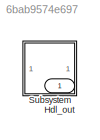
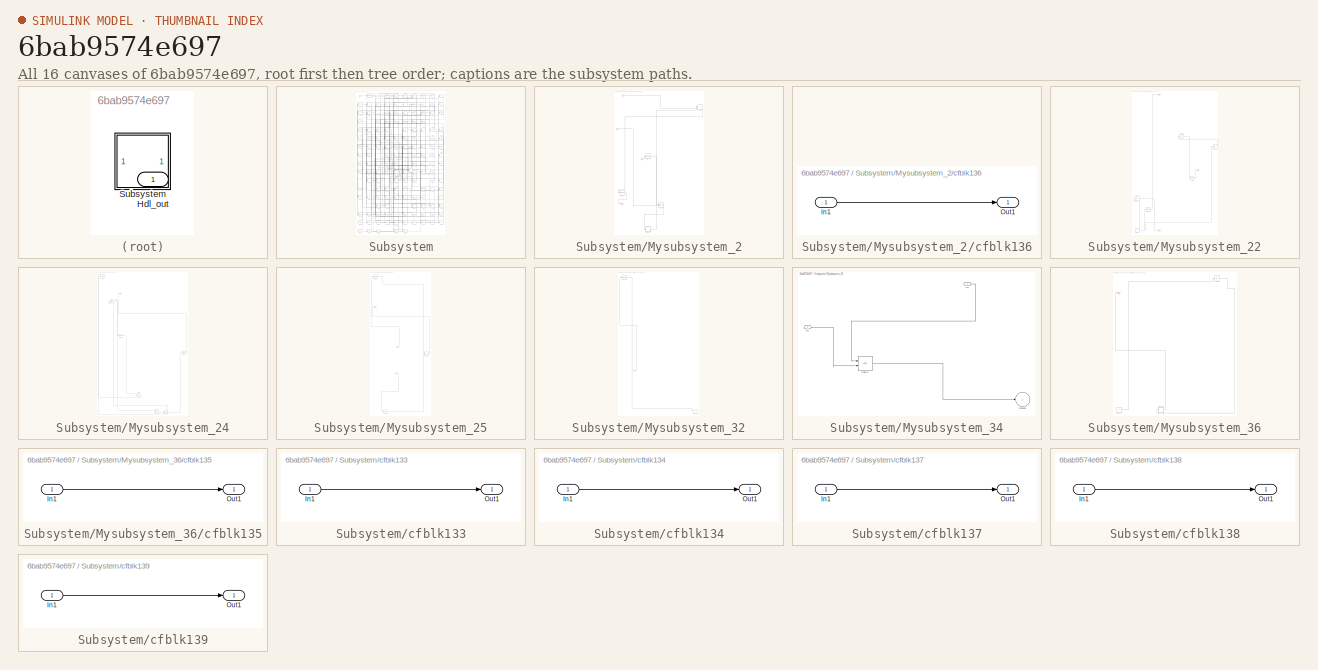
[diagram: thumbnail index - all 16 canvases of the model, root first then tree order]
MODEL slx_6bab9574e697
KIND model
CONFIG AbsTol = auto
CONFIG EnableMultiTasking = off
CONFIG FixedStep = auto
CONFIG MaxStep = auto
CONFIG MinStep = auto
CONFIG RelTol = 1e-3
CONFIG SampleTimeConstraint = Unconstrained
CONFIG SolverName = VariableStepAuto
CONFIG StartTime = 0.0
CONFIG StopTime = 10.0
BLOCK [Outport] Hdl_out
  OutDataTypeStr = uint8
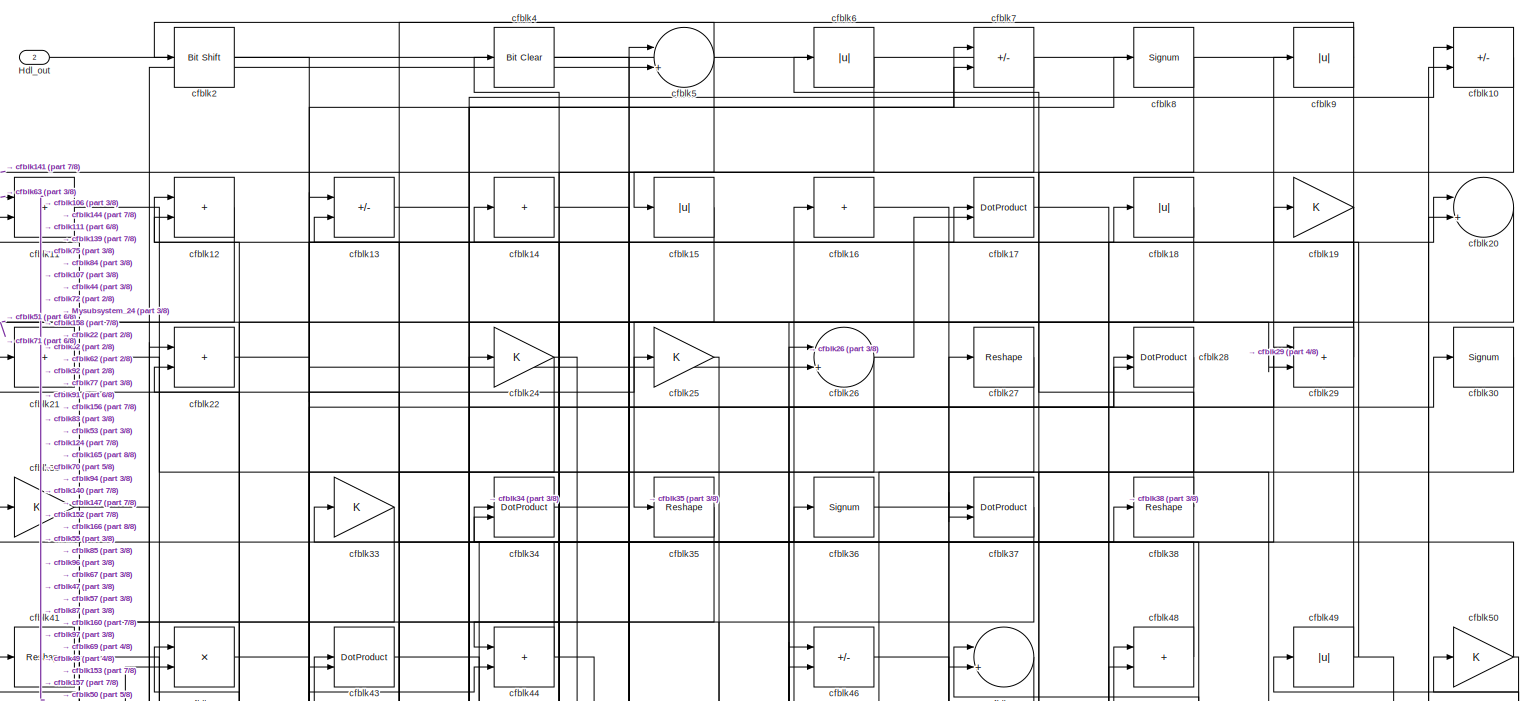
[diagram: Subsystem - part 1/8, full width, top band]
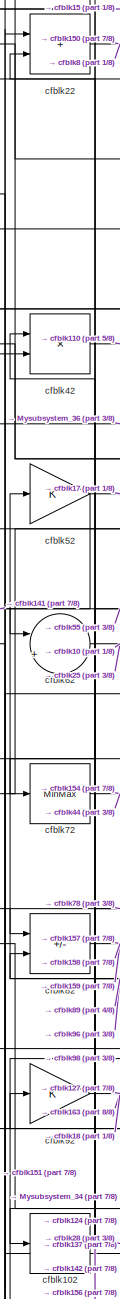
[diagram: Subsystem - part 2/8, middle left region]
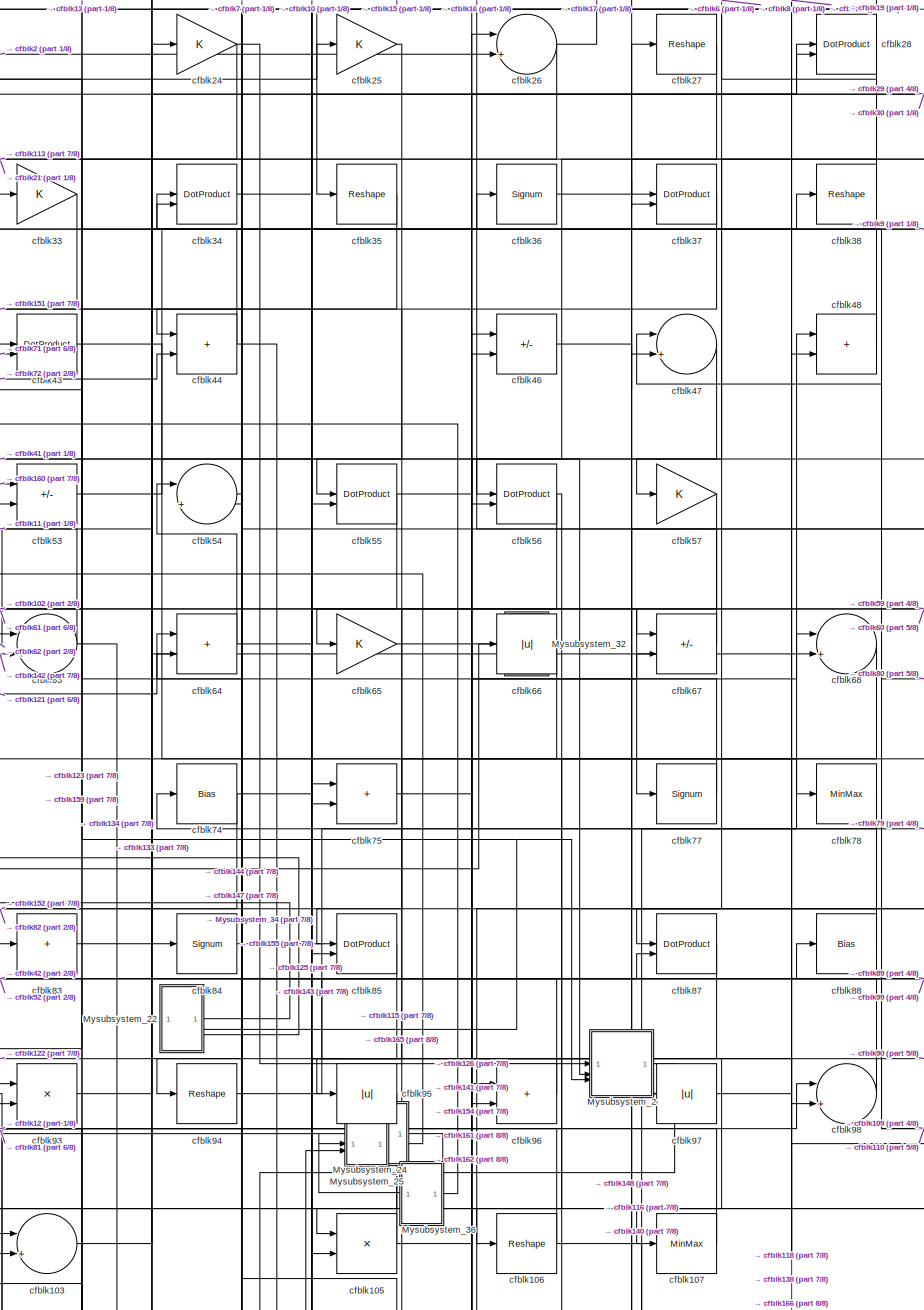
[diagram: Subsystem - part 3/8, central region]
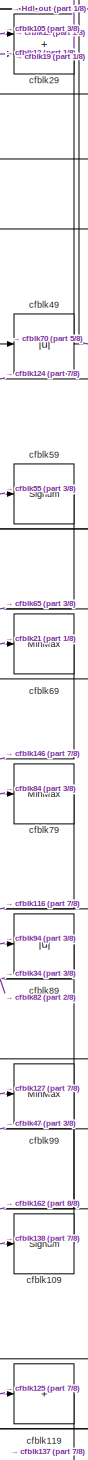
[diagram: Subsystem - part 4/8, middle right region]
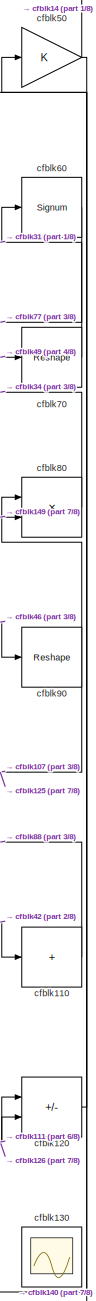
[diagram: Subsystem - part 5/8, middle right region]
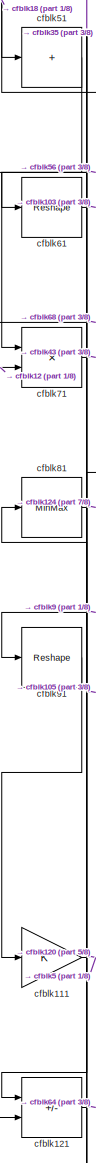
[diagram: Subsystem - part 6/8, middle left region]
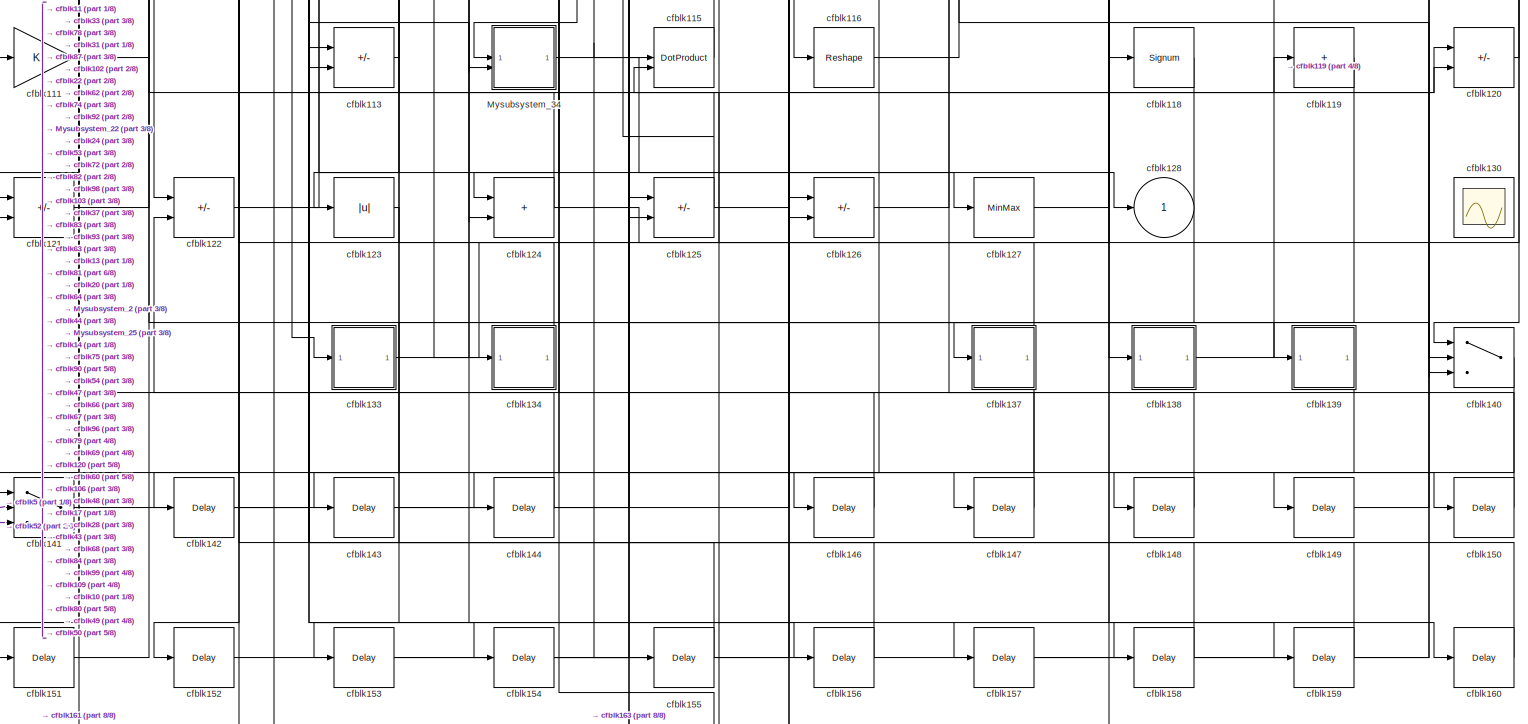
[diagram: Subsystem - part 7/8, full width, bottom band]
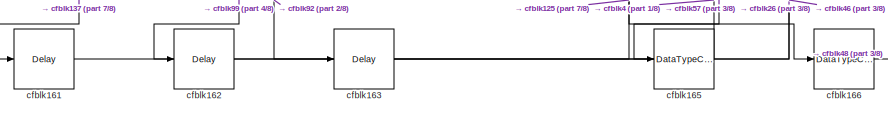
[diagram: Subsystem - part 8/8, bottom left region]
BLOCK [SubSystem] Subsystem
BLOCK [Outport] Subsystem/Hdl_out
  OutDataTypeStr = uint8
  Port = 2
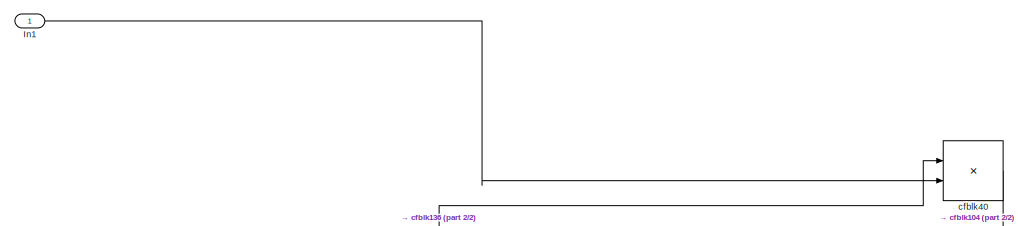
[diagram: Subsystem/Mysubsystem_2 - part 1/2, full width, top band]
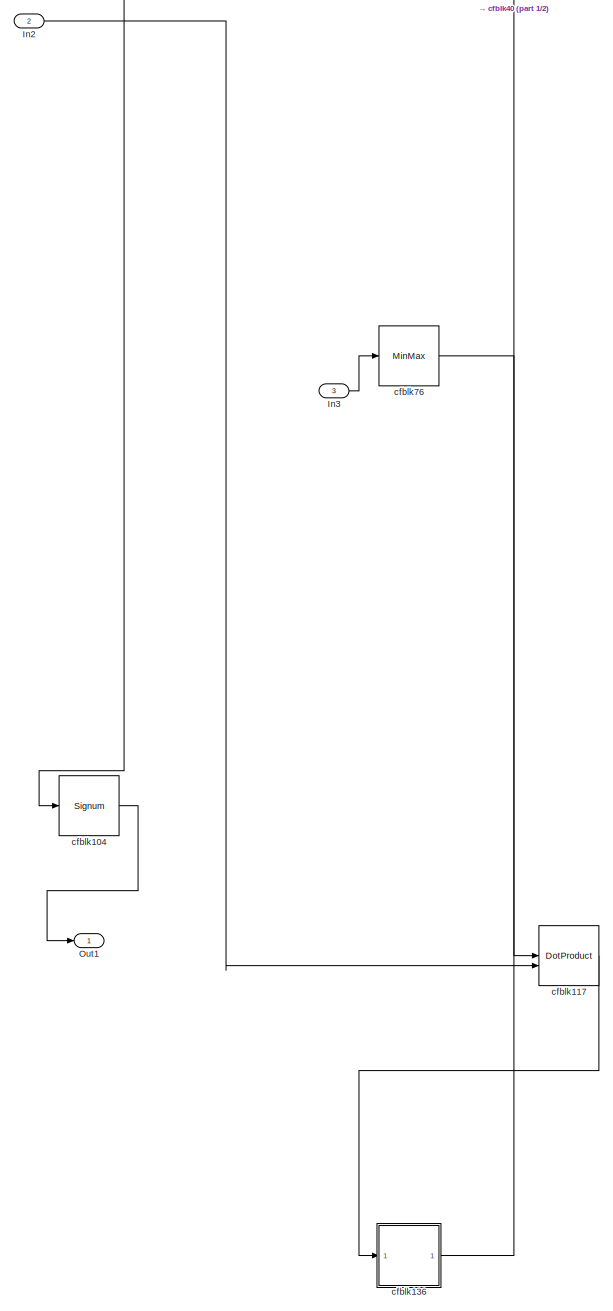
[diagram: Subsystem/Mysubsystem_2 - part 2/2, left side, full height]
BLOCK [SubSystem] Subsystem/Mysubsystem_2
  RTWFcnName = Mysubsystem_2
  RTWFcnNameOpts = User specified
  RTWFileNameOpts = Use function name
  RTWSystemCode = Reusable function
  TreatAsAtomicUnit = on
BLOCK [Inport] Subsystem/Mysubsystem_2/In1
BLOCK [Inport] Subsystem/Mysubsystem_2/In2
  Port = 2
BLOCK [Inport] Subsystem/Mysubsystem_2/In3
  Port = 3
BLOCK [Outport] Subsystem/Mysubsystem_2/Out1
BLOCK [Signum] Subsystem/Mysubsystem_2/cfblk104
BLOCK [DotProduct] Subsystem/Mysubsystem_2/cfblk117
  OutDataTypeStr = Inherit: Inherit via internal rule
BLOCK [SubSystem] Subsystem/Mysubsystem_2/cfblk136
  LibrarySourceBlock = hdlsllib/Ports &\nSubsystems/Subsystem
BLOCK [Inport] Subsystem/Mysubsystem_2/cfblk136/In1
BLOCK [Outport] Subsystem/Mysubsystem_2/cfblk136/Out1
BLOCK [Product] Subsystem/Mysubsystem_2/cfblk40
  Inputs = */
  RndMeth = Zero
  SaturateOnIntegerOverflow = on
BLOCK [MinMax] Subsystem/Mysubsystem_2/cfblk76
BLOCK [SubSystem] Subsystem/Mysubsystem_22
  RTWFcnName = Mysubsystem_22
  RTWFcnNameOpts = User specified
  RTWFileNameOpts = Use function name
  RTWSystemCode = Reusable function
  TreatAsAtomicUnit = on
BLOCK [Outport] Subsystem/Mysubsystem_22/Out1
BLOCK [Outport] Subsystem/Mysubsystem_22/Out2
  Port = 2
BLOCK [Outport] Subsystem/Mysubsystem_22/Out3
  Port = 3
BLOCK [Abs] Subsystem/Mysubsystem_22/cfblk101
  SaturateOnIntegerOverflow = off
BLOCK [MinMax] Subsystem/Mysubsystem_22/cfblk112
BLOCK [Constant] Subsystem/Mysubsystem_22/cfblk131
  SampleTime = -1
BLOCK [Abs] Subsystem/Mysubsystem_22/cfblk45
  SaturateOnIntegerOverflow = off
BLOCK [Abs] Subsystem/Mysubsystem_22/cfblk58
  SaturateOnIntegerOverflow = off
BLOCK [Gain] Subsystem/Mysubsystem_22/cfblk86
BLOCK [SubSystem] Subsystem/Mysubsystem_24
  RTWFcnName = Mysubsystem_24
  RTWFcnNameOpts = User specified
  RTWFileNameOpts = Use function name
  RTWSystemCode = Reusable function
  TreatAsAtomicUnit = on
BLOCK [Inport] Subsystem/Mysubsystem_24/In1
BLOCK [Outport] Subsystem/Mysubsystem_24/Out1
BLOCK [Reference] Subsystem/Mysubsystem_24/cfblk1  REF=hdlsllib/Logic and Bit
Operations/Detect Fall
Nonpositive
  SourceBlock = hdlsllib/Logic and Bit\nOperations/Detect Fall\nNonpositive
  SourceType = Detect Fall Nonpositive
BLOCK [Bias] Subsystem/Mysubsystem_24/cfblk100
  Bias = 0.0
  SaturateOnIntegerOverflow = off
BLOCK [Delay] Subsystem/Mysubsystem_24/cfblk145
  InputPortMap = u0
  SampleTime = 1
BLOCK [DataTypeConversion] Subsystem/Mysubsystem_24/cfblk167
  OutDataTypeStr = uint8
  RndMeth = Floor
  SaturateOnIntegerOverflow = off
BLOCK [DataTypeConversion] Subsystem/Mysubsystem_24/cfblk168
  OutDataTypeStr = uint8
  RndMeth = Floor
  SaturateOnIntegerOverflow = off
BLOCK [MinMax] Subsystem/Mysubsystem_24/cfblk32
BLOCK [MinMax] Subsystem/Mysubsystem_24/cfblk73
BLOCK [SubSystem] Subsystem/Mysubsystem_25
  RTWFcnName = Mysubsystem_25
  RTWFcnNameOpts = User specified
  RTWFileNameOpts = Use function name
  RTWSystemCode = Reusable function
  TreatAsAtomicUnit = on
BLOCK [Inport] Subsystem/Mysubsystem_25/In1
BLOCK [Inport] Subsystem/Mysubsystem_25/In2
  Port = 2
BLOCK [Outport] Subsystem/Mysubsystem_25/Out1
BLOCK [Sum] Subsystem/Mysubsystem_25/cfblk108
  IconShape = rectangular
  Inputs = +-
BLOCK [Delay] Subsystem/Mysubsystem_25/cfblk164
  InputPortMap = u0
  SampleTime = 1
BLOCK [MinMax] Subsystem/Mysubsystem_25/cfblk23
BLOCK [SubSystem] Subsystem/Mysubsystem_32
  RTWFcnName = Mysubsystem_32
  RTWFcnNameOpts = User specified
  RTWFileNameOpts = Use function name
  RTWSystemCode = Reusable function
  TreatAsAtomicUnit = on
BLOCK [Inport] Subsystem/Mysubsystem_32/U
BLOCK [Terminator] Subsystem/Mysubsystem_32/cfblk129
BLOCK [Reference] Subsystem/Mysubsystem_32/cfblk3  REF=hdlsllib/Logic and Bit
Operations/Detect Rise
Nonnegative
  SourceBlock = hdlsllib/Logic and Bit\nOperations/Detect Rise\nNonnegative
  SourceType = Detect Rise Nonnegative
BLOCK [SubSystem] Subsystem/Mysubsystem_34
  RTWFcnName = Mysubsystem_34
  RTWFcnNameOpts = User specified
  RTWFileNameOpts = Use function name
  RTWSystemCode = Reusable function
  TreatAsAtomicUnit = on
BLOCK [Inport] Subsystem/Mysubsystem_34/In1
BLOCK [Inport] Subsystem/Mysubsystem_34/In2
  Port = 2
BLOCK [Sum] Subsystem/Mysubsystem_34/cfblk114
  IconShape = rectangular
  Inputs = +-
BLOCK [Outport] Subsystem/Mysubsystem_34/cfblk128
  VectorParamsAs1DForOutWhenUnconnected = off
BLOCK [SubSystem] Subsystem/Mysubsystem_36
  RTWFcnName = Mysubsystem_36
  RTWFcnNameOpts = User specified
  RTWFileNameOpts = Use function name
  RTWSystemCode = Reusable function
  TreatAsAtomicUnit = on
BLOCK [Outport] Subsystem/Mysubsystem_36/Out1
BLOCK [Constant] Subsystem/Mysubsystem_36/cfblk132
  SampleTime = -1
BLOCK [SubSystem] Subsystem/Mysubsystem_36/cfblk135
  LibrarySourceBlock = hdlsllib/Ports &\nSubsystems/Subsystem
BLOCK [Inport] Subsystem/Mysubsystem_36/cfblk135/In1
BLOCK [Outport] Subsystem/Mysubsystem_36/cfblk135/Out1
BLOCK [Abs] Subsystem/Mysubsystem_36/cfblk39
  SaturateOnIntegerOverflow = off
BLOCK [Sum] Subsystem/cfblk10
  IconShape = rectangular
  Inputs = +-
  OutDataTypeStr = uint8
BLOCK [Sum] Subsystem/cfblk102
  IconShape = rectangular
  Inputs = +
  OutDataTypeStr = uint8
BLOCK [Sum] Subsystem/cfblk103
  Inputs = |++
  OutDataTypeStr = uint8
BLOCK [Product] Subsystem/cfblk105
  Inputs = */
  OutDataTypeStr = uint8
  RndMeth = Zero
  SaturateOnIntegerOverflow = on
BLOCK [Reshape] Subsystem/cfblk106
BLOCK [MinMax] Subsystem/cfblk107
  OutDataTypeStr = uint8
BLOCK [Signum] Subsystem/cfblk109
BLOCK [Sum] Subsystem/cfblk11
  IconShape = rectangular
  OutDataTypeStr = uint8
BLOCK [Sum] Subsystem/cfblk110
  IconShape = rectangular
  Inputs = +
  OutDataTypeStr = uint8
BLOCK [Gain] Subsystem/cfblk111
  OutDataTypeStr = uint8
BLOCK [Sum] Subsystem/cfblk113
  IconShape = rectangular
  Inputs = +-
  OutDataTypeStr = uint8
BLOCK [DotProduct] Subsystem/cfblk115
  OutDataTypeStr = uint8
BLOCK [Reshape] Subsystem/cfblk116
BLOCK [Signum] Subsystem/cfblk118
BLOCK [Sum] Subsystem/cfblk119
  IconShape = rectangular
  Inputs = +
  OutDataTypeStr = uint8
BLOCK [Sum] Subsystem/cfblk12
  IconShape = rectangular
  OutDataTypeStr = uint8
BLOCK [Sum] Subsystem/cfblk120
  IconShape = rectangular
  Inputs = +-
  OutDataTypeStr = uint8
BLOCK [Sum] Subsystem/cfblk121
  IconShape = rectangular
  Inputs = +-
  OutDataTypeStr = uint8
BLOCK [Sum] Subsystem/cfblk122
  IconShape = rectangular
  Inputs = +-
  OutDataTypeStr = uint8
BLOCK [Abs] Subsystem/cfblk123
  OutDataTypeStr = uint8
  SaturateOnIntegerOverflow = off
BLOCK [Sum] Subsystem/cfblk124
  IconShape = rectangular
  OutDataTypeStr = uint8
BLOCK [Sum] Subsystem/cfblk125
  IconShape = rectangular
  Inputs = +-
  OutDataTypeStr = uint8
BLOCK [Sum] Subsystem/cfblk126
  IconShape = rectangular
  Inputs = +-
  OutDataTypeStr = uint8
BLOCK [MinMax] Subsystem/cfblk127
  OutDataTypeStr = uint8
BLOCK [Outport] Subsystem/cfblk128
  OutDataTypeStr = uint8
  VectorParamsAs1DForOutWhenUnconnected = off
BLOCK [Sum] Subsystem/cfblk13
  IconShape = rectangular
  Inputs = +-
  OutDataTypeStr = uint8
BLOCK [Scope] Subsystem/cfblk130
  Floating = on
  NumInputPorts = 1
  ScopeSpecificationString = Simulink.scopes.TimeScopeBlockCfg('CurrentConfiguration', extmgr.ConfigurationSet(extmgr.Configuration('Core','General UI',true,'FigureColor',[0.156862745098039 0.156862745098039 0.156862745098039]),extmgr.Configuration('Core','Source UI',true),extmgr.Configuration('Sources','WiredSimulink',true,'DataLoggingSaveFormat','StructureWithTime','DataLoggingLimitDataPoints',true,'DataLoggingDecimation','...<+2674ch>
BLOCK [SubSystem] Subsystem/cfblk133
  LibrarySourceBlock = hdlsllib/Ports &\nSubsystems/Subsystem
BLOCK [Inport] Subsystem/cfblk133/In1
BLOCK [Outport] Subsystem/cfblk133/Out1
BLOCK [SubSystem] Subsystem/cfblk134
  LibrarySourceBlock = hdlsllib/Ports &\nSubsystems/Subsystem
BLOCK [Inport] Subsystem/cfblk134/In1
BLOCK [Outport] Subsystem/cfblk134/Out1
BLOCK [SubSystem] Subsystem/cfblk137
  LibrarySourceBlock = hdlsllib/Ports &\nSubsystems/Subsystem
BLOCK [Inport] Subsystem/cfblk137/In1
BLOCK [Outport] Subsystem/cfblk137/Out1
BLOCK [SubSystem] Subsystem/cfblk138
  LibrarySourceBlock = hdlsllib/Ports &\nSubsystems/Subsystem
BLOCK [Inport] Subsystem/cfblk138/In1
BLOCK [Outport] Subsystem/cfblk138/Out1
BLOCK [SubSystem] Subsystem/cfblk139
  LibrarySourceBlock = hdlsllib/Ports &\nSubsystems/Subsystem
BLOCK [Inport] Subsystem/cfblk139/In1
BLOCK [Outport] Subsystem/cfblk139/Out1
BLOCK [Sum] Subsystem/cfblk14
  IconShape = rectangular
  Inputs = +
  OutDataTypeStr = uint8
BLOCK [Switch] Subsystem/cfblk140
  InputSameDT = off
  OutDataTypeStr = uint8
  SaturateOnIntegerOverflow = off
BLOCK [Switch] Subsystem/cfblk141
  InputSameDT = off
  OutDataTypeStr = uint8
  SaturateOnIntegerOverflow = off
BLOCK [Delay] Subsystem/cfblk142
  InputPortMap = u0
  SampleTime = 1
BLOCK [Delay] Subsystem/cfblk143
  InputPortMap = u0
  SampleTime = 1
BLOCK [Delay] Subsystem/cfblk144
  InputPortMap = u0
  SampleTime = 1
BLOCK [Delay] Subsystem/cfblk146
  InputPortMap = u0
  SampleTime = 1
BLOCK [Delay] Subsystem/cfblk147
  InputPortMap = u0
  SampleTime = 1
BLOCK [Delay] Subsystem/cfblk148
  InputPortMap = u0
  SampleTime = 1
BLOCK [Delay] Subsystem/cfblk149
  InputPortMap = u0
  SampleTime = 1
BLOCK [Abs] Subsystem/cfblk15
  OutDataTypeStr = uint8
  SaturateOnIntegerOverflow = off
BLOCK [Delay] Subsystem/cfblk150
  InputPortMap = u0
  SampleTime = 1
BLOCK [Delay] Subsystem/cfblk151
  InputPortMap = u0
  SampleTime = 1
BLOCK [Delay] Subsystem/cfblk152
  InputPortMap = u0
  SampleTime = 1
BLOCK [Delay] Subsystem/cfblk153
  InputPortMap = u0
  SampleTime = 1
BLOCK [Delay] Subsystem/cfblk154
  InputPortMap = u0
  SampleTime = 1
BLOCK [Delay] Subsystem/cfblk155
  InputPortMap = u0
  SampleTime = 1
BLOCK [Delay] Subsystem/cfblk156
  InputPortMap = u0
  SampleTime = 1
BLOCK [Delay] Subsystem/cfblk157
  InputPortMap = u0
  SampleTime = 1
BLOCK [Delay] Subsystem/cfblk158
  InputPortMap = u0
  SampleTime = 1
BLOCK [Delay] Subsystem/cfblk159
  InputPortMap = u0
  SampleTime = 1
BLOCK [Sum] Subsystem/cfblk16
  IconShape = rectangular
  Inputs = +
  OutDataTypeStr = uint8
BLOCK [Delay] Subsystem/cfblk160
  InputPortMap = u0
  SampleTime = 1
BLOCK [Delay] Subsystem/cfblk161
  InputPortMap = u0
  SampleTime = 1
BLOCK [Delay] Subsystem/cfblk162
  InputPortMap = u0
  SampleTime = 1
BLOCK [Delay] Subsystem/cfblk163
  InputPortMap = u0
  SampleTime = 1
BLOCK [DataTypeConversion] Subsystem/cfblk165
  OutDataTypeStr = uint8
  RndMeth = Floor
  SaturateOnIntegerOverflow = off
BLOCK [DataTypeConversion] Subsystem/cfblk166
  OutDataTypeStr = uint8
  RndMeth = Floor
  SaturateOnIntegerOverflow = off
BLOCK [DotProduct] Subsystem/cfblk17
  OutDataTypeStr = uint8
BLOCK [Abs] Subsystem/cfblk18
  OutDataTypeStr = uint8
  SaturateOnIntegerOverflow = off
BLOCK [Gain] Subsystem/cfblk19
  OutDataTypeStr = uint8
BLOCK [Reference] Subsystem/cfblk2  REF=hdlsllib/Logic and Bit
Operations/Bit Shift
  SourceBlock = hdlsllib/Logic and Bit\nOperations/Bit Shift
  SourceType = Bit Shift
BLOCK [Sum] Subsystem/cfblk20
  Inputs = |++
  OutDataTypeStr = uint8
BLOCK [Sum] Subsystem/cfblk21
  IconShape = rectangular
  Inputs = +
  OutDataTypeStr = uint8
BLOCK [Sum] Subsystem/cfblk22
  IconShape = rectangular
  OutDataTypeStr = uint8
BLOCK [Gain] Subsystem/cfblk24
  OutDataTypeStr = uint8
BLOCK [Gain] Subsystem/cfblk25
  OutDataTypeStr = uint8
BLOCK [Sum] Subsystem/cfblk26
  Inputs = |++
  OutDataTypeStr = uint8
BLOCK [Reshape] Subsystem/cfblk27
BLOCK [DotProduct] Subsystem/cfblk28
  OutDataTypeStr = uint8
BLOCK [Sum] Subsystem/cfblk29
  IconShape = rectangular
  OutDataTypeStr = uint8
BLOCK [Signum] Subsystem/cfblk30
BLOCK [Gain] Subsystem/cfblk31
  OutDataTypeStr = uint8
BLOCK [Gain] Subsystem/cfblk33
  OutDataTypeStr = uint8
BLOCK [DotProduct] Subsystem/cfblk34
  OutDataTypeStr = uint8
BLOCK [Reshape] Subsystem/cfblk35
BLOCK [Signum] Subsystem/cfblk36
BLOCK [DotProduct] Subsystem/cfblk37
  OutDataTypeStr = uint8
BLOCK [Reshape] Subsystem/cfblk38
BLOCK [Reference] Subsystem/cfblk4  REF=simulink/Logic and Bit
Operations/Bit Clear
  LibrarySourceBlock = hdlsllib/Logic and Bit\nOperations/Bit Clear
  SourceBlock = simulink/Logic and Bit\nOperations/Bit Clear
  SourceType = Bit Clear
BLOCK [Reshape] Subsystem/cfblk41
BLOCK [Product] Subsystem/cfblk42
  Inputs = */
  OutDataTypeStr = uint8
  RndMeth = Zero
  SaturateOnIntegerOverflow = on
BLOCK [DotProduct] Subsystem/cfblk43
  OutDataTypeStr = uint8
BLOCK [Sum] Subsystem/cfblk44
  IconShape = rectangular
  OutDataTypeStr = uint8
BLOCK [Sum] Subsystem/cfblk46
  IconShape = rectangular
  Inputs = +-
  OutDataTypeStr = uint8
BLOCK [Sum] Subsystem/cfblk47
  Inputs = |++
  OutDataTypeStr = uint8
BLOCK [Sum] Subsystem/cfblk48
  IconShape = rectangular
  OutDataTypeStr = uint8
BLOCK [Abs] Subsystem/cfblk49
  OutDataTypeStr = uint8
  SaturateOnIntegerOverflow = off
BLOCK [Sum] Subsystem/cfblk5
  Inputs = |++
  OutDataTypeStr = uint8
BLOCK [Gain] Subsystem/cfblk50
  OutDataTypeStr = uint8
BLOCK [Sum] Subsystem/cfblk51
  IconShape = rectangular
  Inputs = +
  OutDataTypeStr = uint8
BLOCK [Gain] Subsystem/cfblk52
  OutDataTypeStr = uint8
BLOCK [Sum] Subsystem/cfblk53
  IconShape = rectangular
  Inputs = +-
  OutDataTypeStr = uint8
BLOCK [Sum] Subsystem/cfblk54
  Inputs = |++
  OutDataTypeStr = uint8
BLOCK [DotProduct] Subsystem/cfblk55
  OutDataTypeStr = uint8
BLOCK [DotProduct] Subsystem/cfblk56
  OutDataTypeStr = uint8
BLOCK [Gain] Subsystem/cfblk57
  OutDataTypeStr = uint8
BLOCK [Signum] Subsystem/cfblk59
BLOCK [Abs] Subsystem/cfblk6
  OutDataTypeStr = uint8
  SaturateOnIntegerOverflow = off
BLOCK [Signum] Subsystem/cfblk60
BLOCK [Reshape] Subsystem/cfblk61
BLOCK [Sum] Subsystem/cfblk62
  Inputs = |++
  OutDataTypeStr = uint8
BLOCK [Sum] Subsystem/cfblk63
  Inputs = |++
  OutDataTypeStr = uint8
BLOCK [Sum] Subsystem/cfblk64
  IconShape = rectangular
  OutDataTypeStr = uint8
BLOCK [Gain] Subsystem/cfblk65
  OutDataTypeStr = uint8
BLOCK [Abs] Subsystem/cfblk66
  OutDataTypeStr = uint8
  SaturateOnIntegerOverflow = off
BLOCK [Sum] Subsystem/cfblk67
  IconShape = rectangular
  Inputs = +-
  OutDataTypeStr = uint8
BLOCK [Sum] Subsystem/cfblk68
  Inputs = |++
  OutDataTypeStr = uint8
BLOCK [MinMax] Subsystem/cfblk69
  OutDataTypeStr = uint8
BLOCK [Sum] Subsystem/cfblk7
  IconShape = rectangular
  Inputs = +-
  OutDataTypeStr = uint8
BLOCK [Reshape] Subsystem/cfblk70
BLOCK [Product] Subsystem/cfblk71
  Inputs = */
  OutDataTypeStr = uint8
  RndMeth = Zero
  SaturateOnIntegerOverflow = on
BLOCK [MinMax] Subsystem/cfblk72
  OutDataTypeStr = uint8
BLOCK [Bias] Subsystem/cfblk74
  Bias = 0.0
  SaturateOnIntegerOverflow = off
BLOCK [Sum] Subsystem/cfblk75
  IconShape = rectangular
  OutDataTypeStr = uint8
BLOCK [Signum] Subsystem/cfblk77
BLOCK [MinMax] Subsystem/cfblk78
  OutDataTypeStr = uint8
BLOCK [MinMax] Subsystem/cfblk79
  OutDataTypeStr = uint8
BLOCK [Signum] Subsystem/cfblk8
BLOCK [Product] Subsystem/cfblk80
  Inputs = */
  OutDataTypeStr = uint8
  RndMeth = Zero
  SaturateOnIntegerOverflow = on
BLOCK [MinMax] Subsystem/cfblk81
  OutDataTypeStr = uint8
BLOCK [Sum] Subsystem/cfblk82
  IconShape = rectangular
  Inputs = +-
  OutDataTypeStr = uint8
BLOCK [Sum] Subsystem/cfblk83
  IconShape = rectangular
  Inputs = +
  OutDataTypeStr = uint8
BLOCK [Signum] Subsystem/cfblk84
BLOCK [DotProduct] Subsystem/cfblk85
  OutDataTypeStr = uint8
BLOCK [DotProduct] Subsystem/cfblk87
  OutDataTypeStr = uint8
BLOCK [Bias] Subsystem/cfblk88
  Bias = 0.0
  SaturateOnIntegerOverflow = off
BLOCK [Abs] Subsystem/cfblk89
  OutDataTypeStr = uint8
  SaturateOnIntegerOverflow = off
BLOCK [Abs] Subsystem/cfblk9
  OutDataTypeStr = uint8
  SaturateOnIntegerOverflow = off
BLOCK [Reshape] Subsystem/cfblk90
BLOCK [Reshape] Subsystem/cfblk91
BLOCK [Gain] Subsystem/cfblk92
  OutDataTypeStr = uint8
BLOCK [Product] Subsystem/cfblk93
  Inputs = */
  OutDataTypeStr = uint8
  RndMeth = Zero
  SaturateOnIntegerOverflow = on
BLOCK [Reshape] Subsystem/cfblk94
BLOCK [Abs] Subsystem/cfblk95
  OutDataTypeStr = uint8
  SaturateOnIntegerOverflow = off
BLOCK [Sum] Subsystem/cfblk96
  IconShape = rectangular
  OutDataTypeStr = uint8
BLOCK [Abs] Subsystem/cfblk97
  OutDataTypeStr = uint8
  SaturateOnIntegerOverflow = off
BLOCK [Sum] Subsystem/cfblk98
  Inputs = |++
  OutDataTypeStr = uint8
BLOCK [MinMax] Subsystem/cfblk99
  OutDataTypeStr = uint8
LINE Subsystem/Mysubsystem_2/In1:1 -> Subsystem/Mysubsystem_2/cfblk40:2
LINE Subsystem/Mysubsystem_2/In2:1 -> Subsystem/Mysubsystem_2/cfblk117:2
LINE Subsystem/Mysubsystem_2/In3:1 -> Subsystem/Mysubsystem_2/cfblk76:1
LINE Subsystem/Mysubsystem_2/cfblk104:1 -> Subsystem/Mysubsystem_2/Out1:1
LINE Subsystem/Mysubsystem_2/cfblk117:1 -> Subsystem/Mysubsystem_2/cfblk136:1
LINE Subsystem/Mysubsystem_2/cfblk136/In1:1 -> Subsystem/Mysubsystem_2/cfblk136/Out1:1
LINE Subsystem/Mysubsystem_2/cfblk136:1 -> Subsystem/Mysubsystem_2/cfblk40:1
LINE Subsystem/Mysubsystem_2/cfblk40:1 -> Subsystem/Mysubsystem_2/cfblk104:1
LINE Subsystem/Mysubsystem_2/cfblk76:1 -> Subsystem/Mysubsystem_2/cfblk117:1
LINE Subsystem/Mysubsystem_22/cfblk101:1 -> Subsystem/Mysubsystem_22/Out3:1
LINE Subsystem/Mysubsystem_22/cfblk112:1 -> Subsystem/Mysubsystem_22/Out1:1
NET Subsystem/Mysubsystem_22/cfblk131:1 -> Subsystem/Mysubsystem_22/cfblk101:1, Subsystem/Mysubsystem_22/cfblk112:1, Subsystem/Mysubsystem_22/cfblk58:1
LINE Subsystem/Mysubsystem_22/cfblk45:1 -> Subsystem/Mysubsystem_22/cfblk86:1
LINE Subsystem/Mysubsystem_22/cfblk58:1 -> Subsystem/Mysubsystem_22/cfblk45:1
LINE Subsystem/Mysubsystem_22/cfblk86:1 -> Subsystem/Mysubsystem_22/Out2:1
LINE Subsystem/Mysubsystem_22:1 -> Subsystem/Mysubsystem_32:1
NET Subsystem/Mysubsystem_22:2 -> Subsystem/Mysubsystem_2:3, Subsystem/cfblk43:1
LINE Subsystem/Mysubsystem_22:3 -> Subsystem/cfblk133:1
LINE Subsystem/Mysubsystem_24/In1:1 -> Subsystem/Mysubsystem_24/cfblk73:1
LINE Subsystem/Mysubsystem_24/cfblk100:1 -> Subsystem/Mysubsystem_24/Out1:1
LINE Subsystem/Mysubsystem_24/cfblk145:1 -> Subsystem/Mysubsystem_24/cfblk1:1
LINE Subsystem/Mysubsystem_24/cfblk167:1 -> Subsystem/Mysubsystem_24/cfblk100:1
LINE Subsystem/Mysubsystem_24/cfblk168:1 -> Subsystem/Mysubsystem_24/cfblk32:1
LINE Subsystem/Mysubsystem_24/cfblk1:1 -> Subsystem/Mysubsystem_24/cfblk168:1
LINE Subsystem/Mysubsystem_24/cfblk32:1 -> Subsystem/Mysubsystem_24/cfblk167:1
LINE Subsystem/Mysubsystem_24/cfblk73:1 -> Subsystem/Mysubsystem_24/cfblk145:1
LINE Subsystem/Mysubsystem_24:1 -> Subsystem/Mysubsystem_25:1
LINE Subsystem/Mysubsystem_25/In1:1 -> Subsystem/Mysubsystem_25/cfblk23:1
LINE Subsystem/Mysubsystem_25/In2:1 -> Subsystem/Mysubsystem_25/cfblk164:1
LINE Subsystem/Mysubsystem_25/cfblk108:1 -> Subsystem/Mysubsystem_25/Out1:1
LINE Subsystem/Mysubsystem_25/cfblk164:1 -> Subsystem/Mysubsystem_25/cfblk108:2
LINE Subsystem/Mysubsystem_25/cfblk23:1 -> Subsystem/Mysubsystem_25/cfblk108:1
LINE Subsystem/Mysubsystem_25:1 -> Subsystem/cfblk53:2
LINE Subsystem/Mysubsystem_2:1 -> Subsystem/Mysubsystem_34:1
LINE Subsystem/Mysubsystem_32/U:1 -> Subsystem/Mysubsystem_32/cfblk3:1
LINE Subsystem/Mysubsystem_32/cfblk3:1 -> Subsystem/Mysubsystem_32/cfblk129:1
LINE Subsystem/Mysubsystem_34/In1:1 -> Subsystem/Mysubsystem_34/cfblk114:1
LINE Subsystem/Mysubsystem_34/In2:1 -> Subsystem/Mysubsystem_34/cfblk114:2
LINE Subsystem/Mysubsystem_34/cfblk114:1 -> Subsystem/Mysubsystem_34/cfblk128:1
LINE Subsystem/Mysubsystem_34:1 -> Subsystem/cfblk128:1
LINE Subsystem/Mysubsystem_36/cfblk132:1 -> Subsystem/Mysubsystem_36/cfblk39:1
LINE Subsystem/Mysubsystem_36/cfblk135/In1:1 -> Subsystem/Mysubsystem_36/cfblk135/Out1:1
LINE Subsystem/Mysubsystem_36/cfblk135:1 -> Subsystem/Mysubsystem_36/Out1:1
LINE Subsystem/Mysubsystem_36/cfblk39:1 -> Subsystem/Mysubsystem_36/cfblk135:1
LINE Subsystem/Mysubsystem_36:1 -> Subsystem/cfblk42:2
NET Subsystem/cfblk102:1 -> Subsystem/Mysubsystem_34:2, Subsystem/cfblk142:1, Subsystem/cfblk28:1
LINE Subsystem/cfblk103:1 -> Subsystem/cfblk24:1
NET Subsystem/cfblk105:1 -> Subsystem/cfblk29:1, Subsystem/cfblk81:1
NET Subsystem/cfblk106:1 -> Subsystem/cfblk140:3, Subsystem/cfblk41:1
LINE Subsystem/cfblk107:1 -> Subsystem/cfblk12:2
LINE Subsystem/cfblk109:1 -> Subsystem/cfblk47:1
LINE Subsystem/cfblk10:1 -> Subsystem/cfblk55:2
LINE Subsystem/cfblk110:1 -> Subsystem/cfblk88:1
NET Subsystem/cfblk111:1 -> Subsystem/cfblk120:2, Subsystem/cfblk5:2
LINE Subsystem/cfblk113:1 -> Subsystem/cfblk93:1
LINE Subsystem/cfblk115:1 -> Subsystem/cfblk54:2
LINE Subsystem/cfblk116:1 -> Subsystem/cfblk48:1
LINE Subsystem/cfblk118:1 -> Subsystem/cfblk153:1
LINE Subsystem/cfblk119:1 -> Subsystem/cfblk137:1
LINE Subsystem/cfblk11:1 -> Subsystem/cfblk75:2
LINE Subsystem/cfblk120:1 -> Subsystem/cfblk50:1
LINE Subsystem/cfblk121:1 -> Subsystem/cfblk64:1
LINE Subsystem/cfblk122:1 -> Subsystem/cfblk98:1
LINE Subsystem/cfblk123:1 -> Subsystem/cfblk143:1
NET Subsystem/cfblk124:1 -> Subsystem/cfblk22:2, Subsystem/cfblk49:1
NET Subsystem/cfblk125:1 -> Subsystem/Mysubsystem_25:2, Subsystem/cfblk119:1, Subsystem/cfblk67:2, Subsystem/cfblk83:1
NET Subsystem/cfblk126:1 -> Subsystem/cfblk120:1, Subsystem/cfblk60:1
LINE Subsystem/cfblk127:1 -> Subsystem/cfblk99:1
LINE Subsystem/cfblk12:1 -> Subsystem/cfblk71:2
LINE Subsystem/cfblk133/In1:1 -> Subsystem/cfblk133/Out1:1
NET Subsystem/cfblk133:1 -> Subsystem/cfblk28:2, Subsystem/cfblk68:2, Subsystem/cfblk87:2, Subsystem/cfblk98:2
LINE Subsystem/cfblk134/In1:1 -> Subsystem/cfblk134/Out1:1
LINE Subsystem/cfblk134:1 -> Subsystem/cfblk103:1
LINE Subsystem/cfblk137/In1:1 -> Subsystem/cfblk137/Out1:1
NET Subsystem/cfblk137:1 -> Subsystem/cfblk115:2, Subsystem/cfblk161:1, Subsystem/cfblk92:1
LINE Subsystem/cfblk138/In1:1 -> Subsystem/cfblk138/Out1:1
LINE Subsystem/cfblk138:1 -> Subsystem/cfblk109:1
LINE Subsystem/cfblk139/In1:1 -> Subsystem/cfblk139/Out1:1
LINE Subsystem/cfblk139:1 -> Subsystem/cfblk149:1
NET Subsystem/cfblk13:1 -> Subsystem/cfblk156:1, Subsystem/cfblk29:2, Subsystem/cfblk7:2
LINE Subsystem/cfblk140:1 -> Subsystem/cfblk148:1
LINE Subsystem/cfblk141:1 -> Subsystem/cfblk66:1
LINE Subsystem/cfblk142:1 -> Subsystem/cfblk63:2
LINE Subsystem/cfblk143:1 -> Subsystem/cfblk75:1
LINE Subsystem/cfblk144:1 -> Subsystem/cfblk11:2
LINE Subsystem/cfblk146:1 -> Subsystem/cfblk126:1
LINE Subsystem/cfblk147:1 -> Subsystem/cfblk64:2
LINE Subsystem/cfblk148:1 -> Subsystem/cfblk37:1
LINE Subsystem/cfblk149:1 -> Subsystem/cfblk80:2
NET Subsystem/cfblk14:1 -> Subsystem/cfblk140:2, Subsystem/cfblk147:1
LINE Subsystem/cfblk150:1 -> Subsystem/cfblk122:2
LINE Subsystem/cfblk151:1 -> Subsystem/cfblk22:1
LINE Subsystem/cfblk152:1 -> Subsystem/cfblk5:1
LINE Subsystem/cfblk153:1 -> Subsystem/cfblk10:2
LINE Subsystem/cfblk154:1 -> Subsystem/cfblk96:1
LINE Subsystem/cfblk155:1 -> Subsystem/cfblk113:1
LINE Subsystem/cfblk156:1 -> Subsystem/cfblk62:2
LINE Subsystem/cfblk157:1 -> Subsystem/cfblk20:2
LINE Subsystem/cfblk158:1 -> Subsystem/cfblk13:1
LINE Subsystem/cfblk159:1 -> Subsystem/cfblk93:2
NET Subsystem/cfblk15:1 -> Subsystem/cfblk44:1, Subsystem/cfblk72:1
LINE Subsystem/cfblk160:1 -> Subsystem/cfblk53:1
LINE Subsystem/cfblk161:1 -> Subsystem/cfblk26:1
LINE Subsystem/cfblk162:1 -> Subsystem/cfblk46:2
LINE Subsystem/cfblk163:1 -> Subsystem/cfblk125:1
LINE Subsystem/cfblk165:1 -> Subsystem/cfblk4:1
LINE Subsystem/cfblk166:1 -> Subsystem/cfblk48:2
LINE Subsystem/cfblk16:1 -> Subsystem/cfblk47:2
LINE Subsystem/cfblk17:1 -> Subsystem/cfblk160:1
LINE Subsystem/cfblk18:1 -> Subsystem/cfblk51:1
LINE Subsystem/cfblk19:1 -> Subsystem/cfblk35:1
NET Subsystem/cfblk20:1 -> Subsystem/cfblk124:1, Subsystem/cfblk85:2, Subsystem/cfblk96:2
NET Subsystem/cfblk21:1 -> Subsystem/Mysubsystem_24:1, Subsystem/cfblk69:1
NET Subsystem/cfblk22:1 -> Subsystem/cfblk150:1, Subsystem/cfblk8:1
NET Subsystem/cfblk24:1 -> Subsystem/Mysubsystem_2:1, Subsystem/cfblk113:2
LINE Subsystem/cfblk25:1 -> Subsystem/cfblk55:1
NET Subsystem/cfblk26:1 -> Subsystem/cfblk17:2, Subsystem/cfblk63:1
LINE Subsystem/cfblk27:1 -> Subsystem/cfblk56:1
LINE Subsystem/cfblk28:1 -> Subsystem/cfblk37:2
LINE Subsystem/cfblk29:1 -> Subsystem/cfblk12:1
LINE Subsystem/cfblk2:1 -> Subsystem/cfblk26:2
LINE Subsystem/cfblk30:1 -> Subsystem/cfblk87:1
LINE Subsystem/cfblk31:1 -> Subsystem/cfblk139:1
LINE Subsystem/cfblk33:1 -> Subsystem/cfblk151:1
LINE Subsystem/cfblk34:1 -> Subsystem/cfblk30:1
LINE Subsystem/cfblk35:1 -> Subsystem/cfblk121:1
LINE Subsystem/cfblk36:1 -> Subsystem/cfblk27:1
NET Subsystem/cfblk37:1 -> Subsystem/cfblk123:1, Subsystem/cfblk85:1
LINE Subsystem/cfblk38:1 -> Subsystem/cfblk6:1
LINE Subsystem/cfblk41:1 -> Subsystem/cfblk84:1
LINE Subsystem/cfblk42:1 -> Subsystem/cfblk110:1
NET Subsystem/cfblk43:1 -> Subsystem/Mysubsystem_2:2, Subsystem/cfblk138:1
NET Subsystem/cfblk44:1 -> Subsystem/cfblk115:1, Subsystem/cfblk13:2, Subsystem/cfblk155:1
LINE Subsystem/cfblk46:1 -> Subsystem/cfblk90:1
LINE Subsystem/cfblk47:1 -> Subsystem/cfblk126:2
LINE Subsystem/cfblk48:1 -> Subsystem/cfblk33:1
NET Subsystem/cfblk49:1 -> Subsystem/Hdl_out:1, Subsystem/cfblk19:1, Subsystem/cfblk70:1
LINE Subsystem/cfblk4:1 -> Subsystem/cfblk166:1
NET Subsystem/cfblk50:1 -> Subsystem/cfblk140:1, Subsystem/cfblk14:1
LINE Subsystem/cfblk51:1 -> Subsystem/cfblk71:1
NET Subsystem/cfblk52:1 -> Subsystem/cfblk141:3, Subsystem/cfblk17:1, Subsystem/cfblk62:1
NET Subsystem/cfblk53:1 -> Subsystem/cfblk56:2, Subsystem/cfblk9:1
LINE Subsystem/cfblk54:1 -> Subsystem/cfblk144:1
NET Subsystem/cfblk55:1 -> Subsystem/cfblk102:1, Subsystem/cfblk59:1
NET Subsystem/cfblk56:1 -> Subsystem/cfblk106:1, Subsystem/cfblk61:1
LINE Subsystem/cfblk57:1 -> Subsystem/cfblk165:1
LINE Subsystem/cfblk59:1 -> Subsystem/cfblk65:1
NET Subsystem/cfblk5:1 -> Subsystem/cfblk141:2, Subsystem/cfblk2:1
LINE Subsystem/cfblk60:1 -> Subsystem/cfblk77:1
LINE Subsystem/cfblk61:1 -> Subsystem/cfblk103:2
NET Subsystem/cfblk62:1 -> Subsystem/cfblk10:1, Subsystem/cfblk25:1
NET Subsystem/cfblk63:1 -> Subsystem/cfblk11:1, Subsystem/cfblk134:1
NET Subsystem/cfblk64:1 -> Subsystem/cfblk54:1, Subsystem/cfblk67:1
LINE Subsystem/cfblk65:1 -> Subsystem/cfblk97:1
LINE Subsystem/cfblk66:1 -> Subsystem/cfblk95:1
LINE Subsystem/cfblk67:1 -> Subsystem/cfblk16:1
LINE Subsystem/cfblk68:1 -> Subsystem/cfblk121:2
LINE Subsystem/cfblk69:1 -> Subsystem/cfblk146:1
LINE Subsystem/cfblk6:1 -> Subsystem/cfblk15:1
LINE Subsystem/cfblk70:1 -> Subsystem/cfblk31:1
LINE Subsystem/cfblk71:1 -> Subsystem/cfblk43:2
NET Subsystem/cfblk72:1 -> Subsystem/cfblk154:1, Subsystem/cfblk44:2
NET Subsystem/cfblk74:1 -> Subsystem/cfblk152:1, Subsystem/cfblk36:1
NET Subsystem/cfblk75:1 -> Subsystem/cfblk46:1, Subsystem/cfblk68:1, Subsystem/cfblk78:1
LINE Subsystem/cfblk77:1 -> Subsystem/cfblk21:1
NET Subsystem/cfblk78:1 -> Subsystem/cfblk141:1, Subsystem/cfblk82:1
LINE Subsystem/cfblk79:1 -> Subsystem/cfblk116:1
LINE Subsystem/cfblk7:1 -> Subsystem/cfblk94:1
LINE Subsystem/cfblk80:1 -> Subsystem/cfblk34:2
LINE Subsystem/cfblk81:1 -> Subsystem/cfblk124:2
NET Subsystem/cfblk82:1 -> Subsystem/cfblk157:1, Subsystem/cfblk158:1, Subsystem/cfblk159:1
LINE Subsystem/cfblk83:1 -> Subsystem/cfblk7:1
NET Subsystem/cfblk84:1 -> Subsystem/cfblk118:1, Subsystem/cfblk79:1
LINE Subsystem/cfblk85:1 -> Subsystem/cfblk105:2
LINE Subsystem/cfblk87:1 -> Subsystem/cfblk122:1
LINE Subsystem/cfblk88:1 -> Subsystem/cfblk74:1
LINE Subsystem/cfblk89:1 -> Subsystem/cfblk82:2
LINE Subsystem/cfblk8:1 -> Subsystem/cfblk57:1
NET Subsystem/cfblk90:1 -> Subsystem/cfblk107:1, Subsystem/cfblk125:2, Subsystem/cfblk80:1
LINE Subsystem/cfblk91:1 -> Subsystem/cfblk111:1
NET Subsystem/cfblk92:1 -> Subsystem/cfblk127:1, Subsystem/cfblk163:1, Subsystem/cfblk18:1
LINE Subsystem/cfblk93:1 -> Subsystem/cfblk38:1
LINE Subsystem/cfblk94:1 -> Subsystem/cfblk89:1
LINE Subsystem/cfblk95:1 -> Subsystem/cfblk105:1
LINE Subsystem/cfblk96:1 -> Subsystem/cfblk42:1
LINE Subsystem/cfblk97:1 -> Subsystem/cfblk20:1
LINE Subsystem/cfblk98:1 -> Subsystem/cfblk52:1
NET Subsystem/cfblk99:1 -> Subsystem/cfblk162:1, Subsystem/cfblk34:1
LINE Subsystem/cfblk9:1 -> Subsystem/cfblk91:1
LINE Subsystem:1 -> Hdl_out:1
note: NET lines group one-source signal fan-out (src -> all destinations, sorted); 1:1 wires keep LINE
